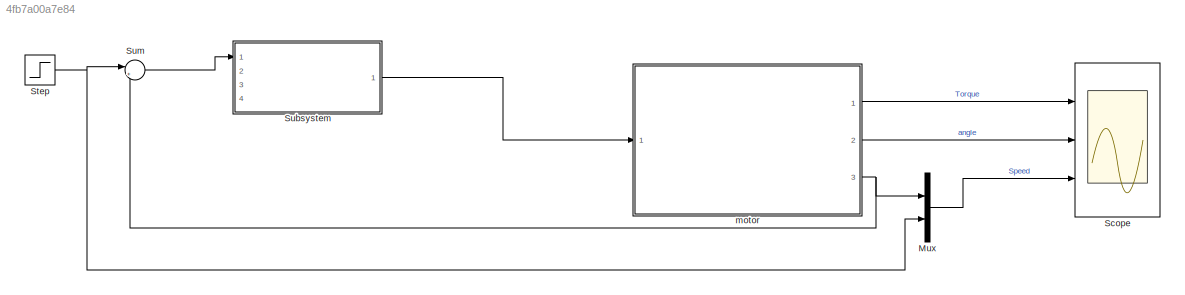
MODEL slx_4fb7a00a7e84
KIND model
CONFIG AbsTol = auto
CONFIG FixedStep = auto
CONFIG MaxStep = auto
CONFIG MinStep = auto
CONFIG RelTol = 1e-3
CONFIG SampleTimeConstraint = Unconstrained
CONFIG Solver = VariableStepAuto
CONFIG SolverMode = Auto
CONFIG SolverName = VariableStepAuto
CONFIG StartTime = 0.0
CONFIG StopTime = 10.0
BLOCK [Mux] Mux
  DisplayOption = bar
  Inputs = 2
  Ports = [2, 1]
BLOCK [Scope] Scope
  NumInputPorts = 3
  Ports = [3]
  ScopeSpecificationString = Simulink.scopes.TimeScopeBlockCfg('CurrentConfiguration', extmgr.ConfigurationSet(extmgr.Configuration('Core','General UI',true),extmgr.Configuration('Core','Source UI',true),extmgr.Configuration('Sources','WiredSimulink',true),extmgr.Configuration('Visuals','Time Domain',true,'SerializedDisplays',{struct('MinYLimReal','-51.09993','MaxYLimReal','459.89937','YLabelReal','','MinYLimMag','0.00000','M...<+2695ch>
BLOCK [Step] Step
  After = 100
  SampleTime = 0
  Time = 5
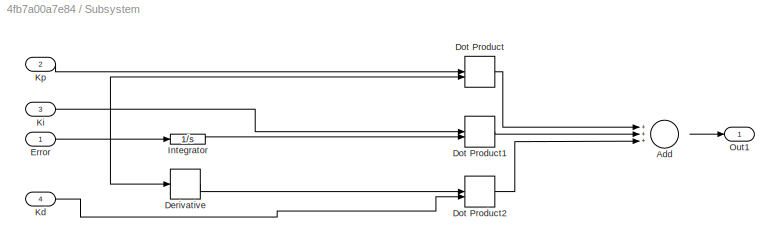
BLOCK [SubSystem] Subsystem
  Ports = [4, 1]
  RequestExecContextInheritance = off
  Variant = off
BLOCK [Sum] Subsystem/Add
  InputSameDT = off
  Inputs = +++
  OutDataTypeStr = Inherit: Inherit via internal rule
  Ports = [3, 1]
  SaturateOnIntegerOverflow = off
BLOCK [Derivative] Subsystem/Derivative
BLOCK [DotProduct] Subsystem/Dot Product
  OutDataTypeStr = Inherit: Inherit via internal rule
BLOCK [DotProduct] Subsystem/Dot Product1
  OutDataTypeStr = Inherit: Inherit via internal rule
BLOCK [DotProduct] Subsystem/Dot Product2
  OutDataTypeStr = Inherit: Inherit via internal rule
BLOCK [Inport] Subsystem/Error 
  IconDisplay = Port number
BLOCK [Integrator] Subsystem/Integrator
  Ports = [1, 1]
BLOCK [Inport] Subsystem/Kd
  IconDisplay = Port number
  Port = 4
BLOCK [Inport] Subsystem/Ki 
  IconDisplay = Port number
  Port = 3
BLOCK [Inport] Subsystem/Kp 
  IconDisplay = Port number
  Port = 2
BLOCK [Outport] Subsystem/Out1
  IconDisplay = Port number
BLOCK [Sum] Sum
  IconShape = round
  InputSameDT = off
  Inputs = |+-
  OutDataTypeStr = Inherit: Inherit via internal rule
  Ports = [2, 1]
  SaturateOnIntegerOverflow = off
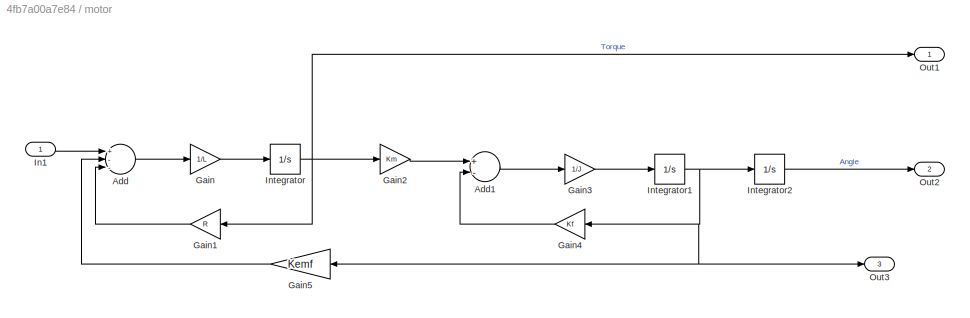
BLOCK [SubSystem] motor 
  Ports = [1, 3]
  RequestExecContextInheritance = off
  Variant = off
BLOCK [Sum] motor /Add
  InputSameDT = off
  Inputs = +--
  OutDataTypeStr = Inherit: Inherit via internal rule
  Ports = [3, 1]
  SaturateOnIntegerOverflow = off
BLOCK [Sum] motor /Add1
  InputSameDT = off
  Inputs = +-
  OutDataTypeStr = Inherit: Inherit via internal rule
  Ports = [2, 1]
  SaturateOnIntegerOverflow = off
BLOCK [Gain] motor /Gain
  Gain = 1/L
  OutDataTypeStr = Inherit: Inherit via internal rule
  ParamDataTypeStr = Inherit: Inherit via internal rule
  SaturateOnIntegerOverflow = off
BLOCK [Gain] motor /Gain1
  Gain = R
  OutDataTypeStr = Inherit: Inherit via internal rule
  ParamDataTypeStr = Inherit: Inherit via internal rule
  SaturateOnIntegerOverflow = off
BLOCK [Gain] motor /Gain2
  Gain = Km
  OutDataTypeStr = Inherit: Inherit via internal rule
  ParamDataTypeStr = Inherit: Inherit via internal rule
  SaturateOnIntegerOverflow = off
BLOCK [Gain] motor /Gain3
  Gain = 1/J
  OutDataTypeStr = Inherit: Inherit via internal rule
  ParamDataTypeStr = Inherit: Inherit via internal rule
  SaturateOnIntegerOverflow = off
BLOCK [Gain] motor /Gain4
  Gain = Kf
  OutDataTypeStr = Inherit: Inherit via internal rule
  ParamDataTypeStr = Inherit: Inherit via internal rule
  SaturateOnIntegerOverflow = off
BLOCK [Gain] motor /Gain5
  Gain = Kemf
  OutDataTypeStr = Inherit: Inherit via internal rule
  ParamDataTypeStr = Inherit: Inherit via internal rule
  SaturateOnIntegerOverflow = off
BLOCK [Inport] motor /In1
  IconDisplay = Port number
BLOCK [Integrator] motor /Integrator
  Ports = [1, 1]
BLOCK [Integrator] motor /Integrator1
  Ports = [1, 1]
BLOCK [Integrator] motor /Integrator2
  Ports = [1, 1]
BLOCK [Outport] motor /Out1
  IconDisplay = Port number
BLOCK [Outport] motor /Out2
  IconDisplay = Port number
  Port = 2
BLOCK [Outport] motor /Out3
  IconDisplay = Port number
  Port = 3
LINE Mux:1 -> Scope:3
NET Step:1 -> Mux:2, Sum:1
LINE Subsystem/Add:1 -> Subsystem/Out1:1
LINE Subsystem/Derivative:1 -> Subsystem/Dot Product2:1
LINE Subsystem/Dot Product1:1 -> Subsystem/Add:2
LINE Subsystem/Dot Product2:1 -> Subsystem/Add:3
LINE Subsystem/Dot Product:1 -> Subsystem/Add:1
NET Subsystem/Error :1 -> Subsystem/Derivative:1, Subsystem/Dot Product:2, Subsystem/Integrator:1
LINE Subsystem/Integrator:1 -> Subsystem/Dot Product1:2
LINE Subsystem/Kd:1 -> Subsystem/Dot Product2:2
LINE Subsystem/Ki :1 -> Subsystem/Dot Product1:1
LINE Subsystem/Kp :1 -> Subsystem/Dot Product:1
LINE Subsystem:1 -> motor :1
LINE Sum:1 -> Subsystem:1
LINE motor /Add1:1 -> motor /Gain3:1
LINE motor /Add:1 -> motor /Gain:1
LINE motor /Gain1:1 -> motor /Add:3
LINE motor /Gain2:1 -> motor /Add1:1
LINE motor /Gain3:1 -> motor /Integrator1:1
LINE motor /Gain4:1 -> motor /Add1:2
LINE motor /Gain5:1 -> motor /Add:2
LINE motor /Gain:1 -> motor /Integrator:1
LINE motor /In1:1 -> motor /Add:1
NET motor /Integrator1:1 -> motor /Gain4:1, motor /Gain5:1, motor /Integrator2:1, motor /Out3:1
LINE motor /Integrator2:1 -> motor /Out2:1
NET motor /Integrator:1 -> motor /Gain1:1, motor /Gain2:1, motor /Out1:1
LINE motor :1 -> Scope:1
LINE motor :2 -> Scope:2
NET motor :3 -> Mux:1, Sum:2
note: NET lines group one-source signal fan-out (src -> all destinations, sorted); 1:1 wires keep LINE
